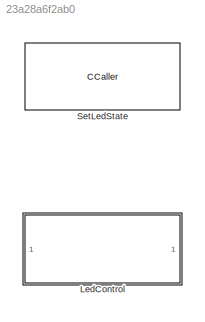
MODEL slx_23a28a6f2ab0
KIND library
CONFIG AbsTol = auto
CONFIG EnableMultiTasking = off
CONFIG FixedStep = auto
CONFIG MaxStep = auto
CONFIG MinStep = auto
CONFIG RelTol = 1e-3
CONFIG SampleTimeConstraint = Unconstrained
CONFIG SolverName = VariableStepAuto
CONFIG StartTime = 0.0
CONFIG StopTime = 10.0
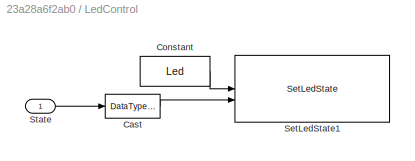
BLOCK [SubSystem] LedControl
BLOCK [DataTypeConversion] LedControl/Cast
  OutDataTypeStr = uint8
  RndMeth = Simplest
  SaturateOnIntegerOverflow = off
BLOCK [Constant] LedControl/Constant
  OutDataTypeStr = uint8
  Value = Led
BLOCK [Reference] LedControl/SetLedState1  REF=$bdroot/SetLedState
  SourceBlock = $bdroot/SetLedState
  SourceType = CCaller
BLOCK [Inport] LedControl/State
  OutDataTypeStr = boolean
BLOCK [CCaller] SetLedState
  FunctionName = SetLedState
  PortSpecificationStruct = %)30     .    R ,   8    (     @         %    "     (    !     0         %  0 "0    $    _    07)G3F%M90  4&]R=$YA;64 4V-O<&4     26YD97@     5'EP90      4VEZ90      27-';&]B86P   X    P    !@    @    $          4    (     0    ,    !         !   P!L960 #@   #     &    "     0         !0    @    !     P    $         $  # &QE9  .    .     8    (    !          %    "     $    %     0         0    !0...<+904ch>
LINE LedControl/Cast:1 -> LedControl/SetLedState1:2
LINE LedControl/Constant:1 -> LedControl/SetLedState1:1
LINE LedControl/State:1 -> LedControl/Cast:1
